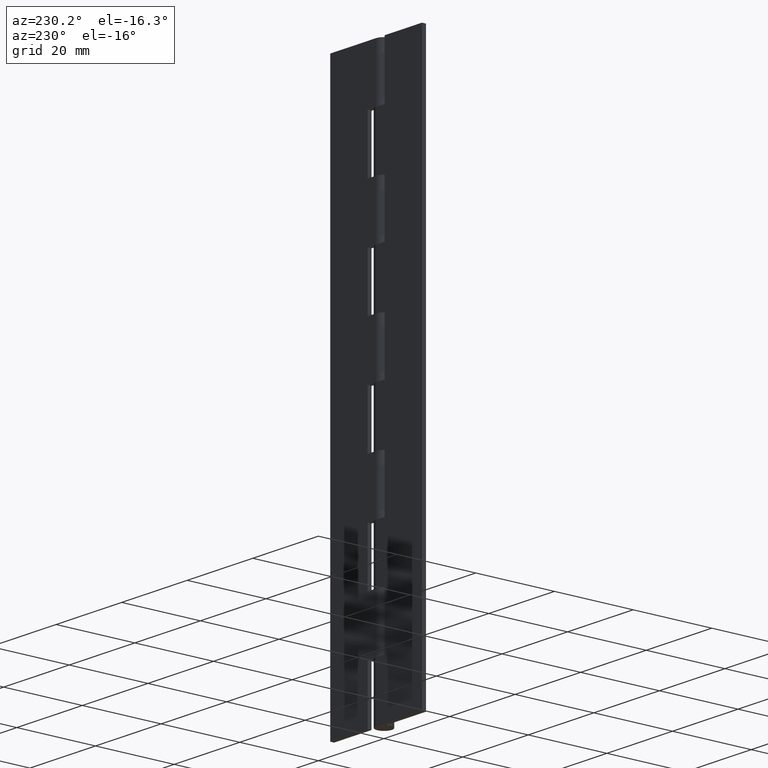
[diagram: clean part render]
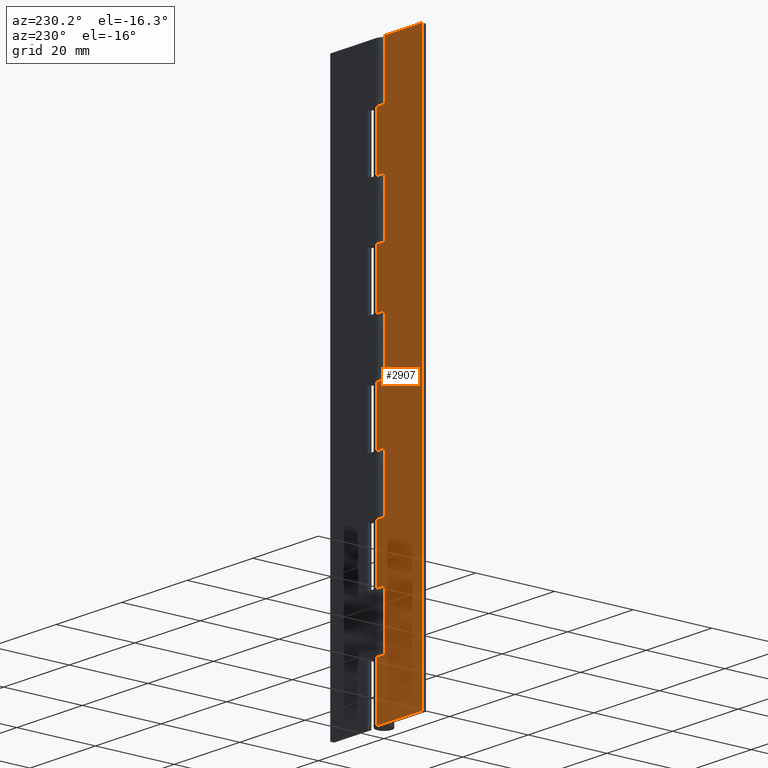
[diagram: same view with one face highlighted and labeled with its STEP entity id]
A machine part, auxiliary view. The second image highlights one B-rep face of the part: STEP entity #2907.
In plain terms, the highlighted face is a freeform B-spline surface patch.
Its self-contained STEP definition (entity closure, byte-faithful):
#1516=CARTESIAN_POINT('',(-2.599998000000000,2.0,126.0));
#1517=VERTEX_POINT('',#1516);
#1518=CARTESIAN_POINT('',(0.0,2.0,126.0));
#1519=VERTEX_POINT('',#1518);
#1520=CARTESIAN_POINT('',(-2.599998000000000,2.0,126.0));
#1521=CARTESIAN_POINT('',(0.0,2.0,126.0));
#1522=QUASI_UNIFORM_CURVE('',1,(#1520,#1521),.UNSPECIFIED.,.F.,.U.);
#1523=EDGE_CURVE('',#1517,#1519,#1522,.T.);
#1602=CARTESIAN_POINT('',(-2.599998000000000,2.0,140.0));
#1603=VERTEX_POINT('',#1602);
#1604=CARTESIAN_POINT('',(-2.599998000000000,2.0,140.0));
#1605=CARTESIAN_POINT('',(-2.599998000000000,2.0,126.0));
#1606=QUASI_UNIFORM_CURVE('',1,(#1604,#1605),.UNSPECIFIED.,.F.,.U.);
#1607=EDGE_CURVE('',#1603,#1517,#1606,.T.);
#1624=CARTESIAN_POINT('',(0.0,2.0,112.0));
#1625=VERTEX_POINT('',#1624);
#1680=CARTESIAN_POINT('',(-2.599998000000000,2.0,112.0));
#1681=VERTEX_POINT('',#1680);
#1687=CARTESIAN_POINT('',(0.0,2.0,112.0));
#1688=CARTESIAN_POINT('',(-2.599998000000000,2.0,112.0));
#1689=QUASI_UNIFORM_CURVE('',1,(#1687,#1688),.UNSPECIFIED.,.F.,.U.);
#1690=EDGE_CURVE('',#1625,#1681,#1689,.T.);
#1700=CARTESIAN_POINT('',(-2.599998000000000,2.0,98.0));
#1701=VERTEX_POINT('',#1700);
#1702=CARTESIAN_POINT('',(0.0,2.0,98.0));
#1703=VERTEX_POINT('',#1702);
#1704=CARTESIAN_POINT('',(-2.599998000000000,2.0,98.0));
#1705=CARTESIAN_POINT('',(0.0,2.0,98.0));
#1706=QUASI_UNIFORM_CURVE('',1,(#1704,#1705),.UNSPECIFIED.,.F.,.U.);
#1707=EDGE_CURVE('',#1701,#1703,#1706,.T.);
#1784=CARTESIAN_POINT('',(-2.599998000000000,2.0,112.0));
#1785=CARTESIAN_POINT('',(-2.599998000000000,2.0,98.0));
#1786=QUASI_UNIFORM_CURVE('',1,(#1784,#1785),.UNSPECIFIED.,.F.,.U.);
#1787=EDGE_CURVE('',#1681,#1701,#1786,.T.);
#1800=CARTESIAN_POINT('',(0.0,2.0,84.0));
#1801=VERTEX_POINT('',#1800);
#1856=CARTESIAN_POINT('',(-2.599998000000000,2.0,84.0));
#1857=VERTEX_POINT('',#1856);
#1863=CARTESIAN_POINT('',(0.0,2.0,84.0));
#1864=CARTESIAN_POINT('',(-2.599998000000000,2.0,84.0));
#1865=QUASI_UNIFORM_CURVE('',1,(#1863,#1864),.UNSPECIFIED.,.F.,.U.);
#1866=EDGE_CURVE('',#1801,#1857,#1865,.T.);
#1876=CARTESIAN_POINT('',(-2.599998000000000,2.0,70.0));
#1877=VERTEX_POINT('',#1876);
#1878=CARTESIAN_POINT('',(0.0,2.0,70.0));
#1879=VERTEX_POINT('',#1878);
#1880=CARTESIAN_POINT('',(-2.599998000000000,2.0,70.0));
#1881=CARTESIAN_POINT('',(0.0,2.0,70.0));
#1882=QUASI_UNIFORM_CURVE('',1,(#1880,#1881),.UNSPECIFIED.,.F.,.U.);
#1883=EDGE_CURVE('',#1877,#1879,#1882,.T.);
#1960=CARTESIAN_POINT('',(-2.599998000000000,2.0,84.0));
#1961=CARTESIAN_POINT('',(-2.599998000000000,2.0,70.0));
#1962=QUASI_UNIFORM_CURVE('',1,(#1960,#1961),.UNSPECIFIED.,.F.,.U.);
#1963=EDGE_CURVE('',#1857,#1877,#1962,.T.);
#1976=CARTESIAN_POINT('',(0.0,2.0,56.0));
#1977=VERTEX_POINT('',#1976);
#2032=CARTESIAN_POINT('',(-2.599998000000000,2.0,56.0));
#2033=VERTEX_POINT('',#2032);
#2039=CARTESIAN_POINT('',(0.0,2.0,56.0));
#2040=CARTESIAN_POINT('',(-2.599998000000000,2.0,56.0));
#2041=QUASI_UNIFORM_CURVE('',1,(#2039,#2040),.UNSPECIFIED.,.F.,.U.);
#2042=EDGE_CURVE('',#1977,#2033,#2041,.T.);
#2052=CARTESIAN_POINT('',(-2.599998000000000,2.0,42.0));
#2053=VERTEX_POINT('',#2052);
#2054=CARTESIAN_POINT('',(0.0,2.0,42.0));
#2055=VERTEX_POINT('',#2054);
#2056=CARTESIAN_POINT('',(-2.599998000000000,2.0,42.0));
#2057=CARTESIAN_POINT('',(0.0,2.0,42.0));
#2058=QUASI_UNIFORM_CURVE('',1,(#2056,#2057),.UNSPECIFIED.,.F.,.U.);
#2059=EDGE_CURVE('',#2053,#2055,#2058,.T.);
#2136=CARTESIAN_POINT('',(-2.599998000000000,2.0,56.0));
#2137=CARTESIAN_POINT('',(-2.599998000000000,2.0,42.0));
#2138=QUASI_UNIFORM_CURVE('',1,(#2136,#2137),.UNSPECIFIED.,.F.,.U.);
#2139=EDGE_CURVE('',#2033,#2053,#2138,.T.);
#2152=CARTESIAN_POINT('',(-2.599998000000000,2.0,28.0));
#2153=VERTEX_POINT('',#2152);
#2159=CARTESIAN_POINT('',(1.224606E-016,2.0,28.0));
#2160=VERTEX_POINT('',#2159);
#2161=CARTESIAN_POINT('',(-2.599998000000000,2.0,28.0));
#2162=CARTESIAN_POINT('',(1.224606E-016,2.0,28.0));
#2163=QUASI_UNIFORM_CURVE('',1,(#2161,#2162),.UNSPECIFIED.,.F.,.U.);
#2164=EDGE_CURVE('',#2153,#2160,#2163,.T.);
#2258=CARTESIAN_POINT('',(0.0,2.0,14.0));
#2259=VERTEX_POINT('',#2258);
#2279=CARTESIAN_POINT('',(-2.599998000000000,2.0,14.0));
#2280=VERTEX_POINT('',#2279);
#2281=CARTESIAN_POINT('',(0.0,2.0,14.0));
#2282=CARTESIAN_POINT('',(-2.599998000000000,2.0,14.0));
#2283=QUASI_UNIFORM_CURVE('',1,(#2281,#2282),.UNSPECIFIED.,.F.,.U.);
#2284=EDGE_CURVE('',#2259,#2280,#2283,.T.);
#2307=CARTESIAN_POINT('',(-2.599998000000000,2.0,14.0));
#2308=CARTESIAN_POINT('',(-2.599998000000000,2.0,28.0));
#2309=QUASI_UNIFORM_CURVE('',1,(#2307,#2308),.UNSPECIFIED.,.F.,.U.);
#2310=EDGE_CURVE('',#2280,#2153,#2309,.T.);
#2326=CARTESIAN_POINT('',(1.224606E-016,2.0,0.0));
#2327=VERTEX_POINT('',#2326);
#2328=CARTESIAN_POINT('',(-14.0,2.0,0.0));
#2329=VERTEX_POINT('',#2328);
#2330=CARTESIAN_POINT('',(1.224606E-016,2.0,0.0));
#2331=CARTESIAN_POINT('',(-14.0,2.0,0.0));
#2332=QUASI_UNIFORM_CURVE('',1,(#2330,#2331),.UNSPECIFIED.,.F.,.U.);
#2333=EDGE_CURVE('',#2327,#2329,#2332,.T.);
#2421=CARTESIAN_POINT('',(0.0,2.0,14.0));
#2422=CARTESIAN_POINT('',(1.224606E-016,2.0,0.0));
#2423=QUASI_UNIFORM_CURVE('',1,(#2421,#2422),.UNSPECIFIED.,.F.,.U.);
#2424=EDGE_CURVE('',#2259,#2327,#2423,.T.);
#2449=CARTESIAN_POINT('',(-14.0,2.0,140.0));
#2450=VERTEX_POINT('',#2449);
#2456=CARTESIAN_POINT('',(-14.0,2.0,140.0));
#2457=CARTESIAN_POINT('',(-14.0,2.0,0.0));
#2458=QUASI_UNIFORM_CURVE('',1,(#2456,#2457),.UNSPECIFIED.,.F.,.U.);
#2459=EDGE_CURVE('',#2450,#2329,#2458,.T.);
#2591=CARTESIAN_POINT('',(0.0,2.0,42.0));
#2592=CARTESIAN_POINT('',(1.224606E-016,2.0,28.0));
#2593=QUASI_UNIFORM_CURVE('',1,(#2591,#2592),.UNSPECIFIED.,.F.,.U.);
#2594=EDGE_CURVE('',#2055,#2160,#2593,.T.);
#2677=CARTESIAN_POINT('',(0.0,2.0,70.0));
#2678=CARTESIAN_POINT('',(0.0,2.0,56.0));
#2679=QUASI_UNIFORM_CURVE('',1,(#2677,#2678),.UNSPECIFIED.,.F.,.U.);
#2680=EDGE_CURVE('',#1879,#1977,#2679,.T.);
#2763=CARTESIAN_POINT('',(0.0,2.0,98.0));
#2764=CARTESIAN_POINT('',(0.0,2.0,84.0));
#2765=QUASI_UNIFORM_CURVE('',1,(#2763,#2764),.UNSPECIFIED.,.F.,.U.);
#2766=EDGE_CURVE('',#1703,#1801,#2765,.T.);
#2777=CARTESIAN_POINT('',(-2.599998000000000,2.0,140.0));
#2778=CARTESIAN_POINT('',(-14.0,2.0,140.0));
#2779=QUASI_UNIFORM_CURVE('',1,(#2777,#2778),.UNSPECIFIED.,.F.,.U.);
#2780=EDGE_CURVE('',#1603,#2450,#2779,.T.);
#2874=CARTESIAN_POINT('',(-14.699299972865290,2.0,146.992999728652790));
#2875=CARTESIAN_POINT('',(-14.699299972865290,2.0,-6.993003483745455));
#2876=CARTESIAN_POINT('',(0.699300348374544,2.0,146.992999728652790));
#2877=CARTESIAN_POINT('',(0.699300348374544,2.0,-6.993003483745455));
#2878=B_SPLINE_SURFACE_WITH_KNOTS('',1,1,((#2874,#2876),(#2875,#2877)),.UNSPECIFIED.,.F.,.F.,.U.,(2,2),(2,2),(0.0,153.986003212398290),(0.0,15.398600321239829),.UNSPECIFIED.);
#2879=ORIENTED_EDGE('',*,*,#1523,.T.);
#2880=CARTESIAN_POINT('',(0.0,2.0,126.0));
#2881=CARTESIAN_POINT('',(0.0,2.0,112.0));
#2882=QUASI_UNIFORM_CURVE('',1,(#2880,#2881),.UNSPECIFIED.,.F.,.U.);
#2883=EDGE_CURVE('',#1519,#1625,#2882,.T.);
#2884=ORIENTED_EDGE('',*,*,#2883,.T.);
#2885=ORIENTED_EDGE('',*,*,#1690,.T.);
#2886=ORIENTED_EDGE('',*,*,#1787,.T.);
#2887=ORIENTED_EDGE('',*,*,#1707,.T.);
#2888=ORIENTED_EDGE('',*,*,#2766,.T.);
#2889=ORIENTED_EDGE('',*,*,#1866,.T.);
#2890=ORIENTED_EDGE('',*,*,#1963,.T.);
#2891=ORIENTED_EDGE('',*,*,#1883,.T.);
#2892=ORIENTED_EDGE('',*,*,#2680,.T.);
#2893=ORIENTED_EDGE('',*,*,#2042,.T.);
#2894=ORIENTED_EDGE('',*,*,#2139,.T.);
#2895=ORIENTED_EDGE('',*,*,#2059,.T.);
#2896=ORIENTED_EDGE('',*,*,#2594,.T.);
#2897=ORIENTED_EDGE('',*,*,#2164,.F.);
#2898=ORIENTED_EDGE('',*,*,#2310,.F.);
#2899=ORIENTED_EDGE('',*,*,#2284,.F.);
#2900=ORIENTED_EDGE('',*,*,#2424,.T.);
#2901=ORIENTED_EDGE('',*,*,#2333,.T.);
#2902=ORIENTED_EDGE('',*,*,#2459,.F.);
#2903=ORIENTED_EDGE('',*,*,#2780,.F.);
#2904=ORIENTED_EDGE('',*,*,#1607,.T.);
#2905=EDGE_LOOP('',(#2879,#2884,#2885,#2886,#2887,#2888,#2889,#2890,#2891,#2892,#2893,#2894,#2895,#2896,#2897,#2898,#2899,#2900,#2901,#2902,#2903,#2904));
#2906=FACE_OUTER_BOUND('',#2905,.T.);
#2907=ADVANCED_FACE('',(#2906),#2878,.F.);